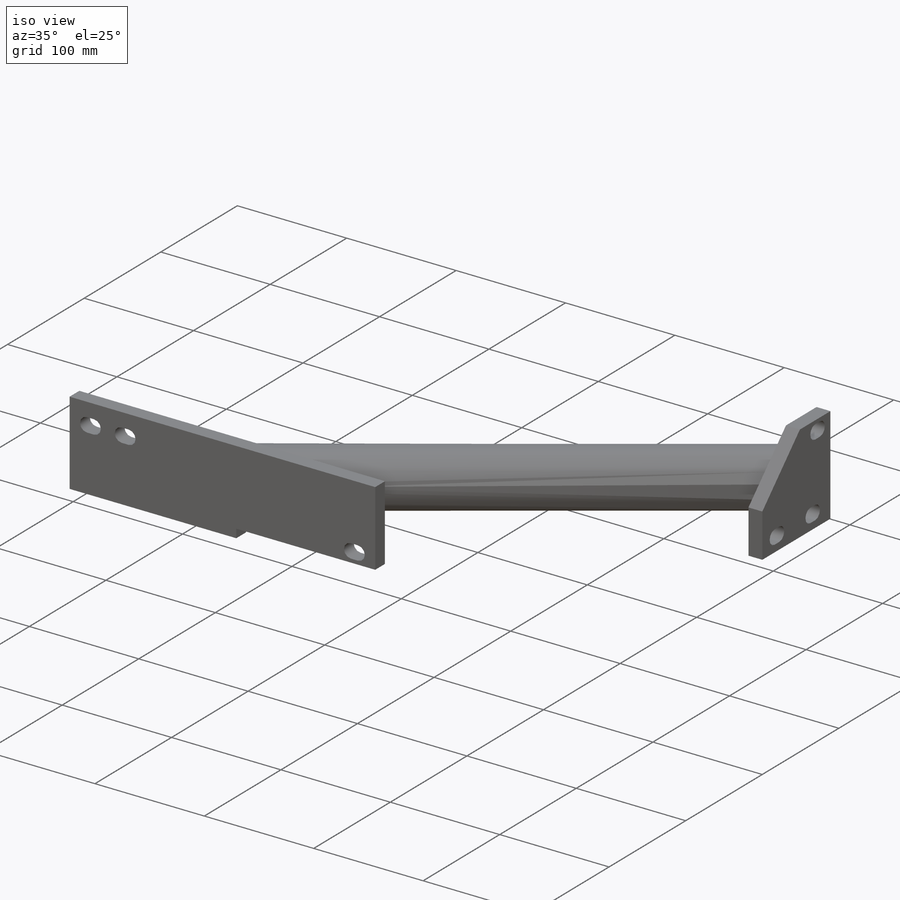
[diagram: iso view]
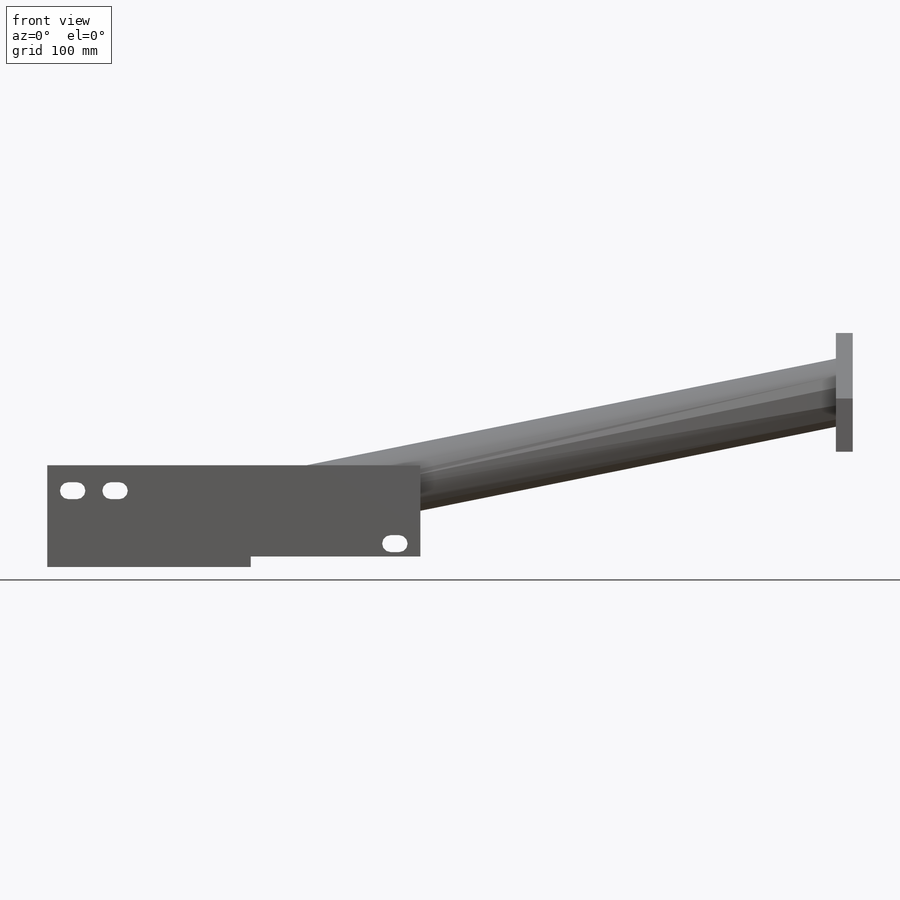
[diagram: front view]
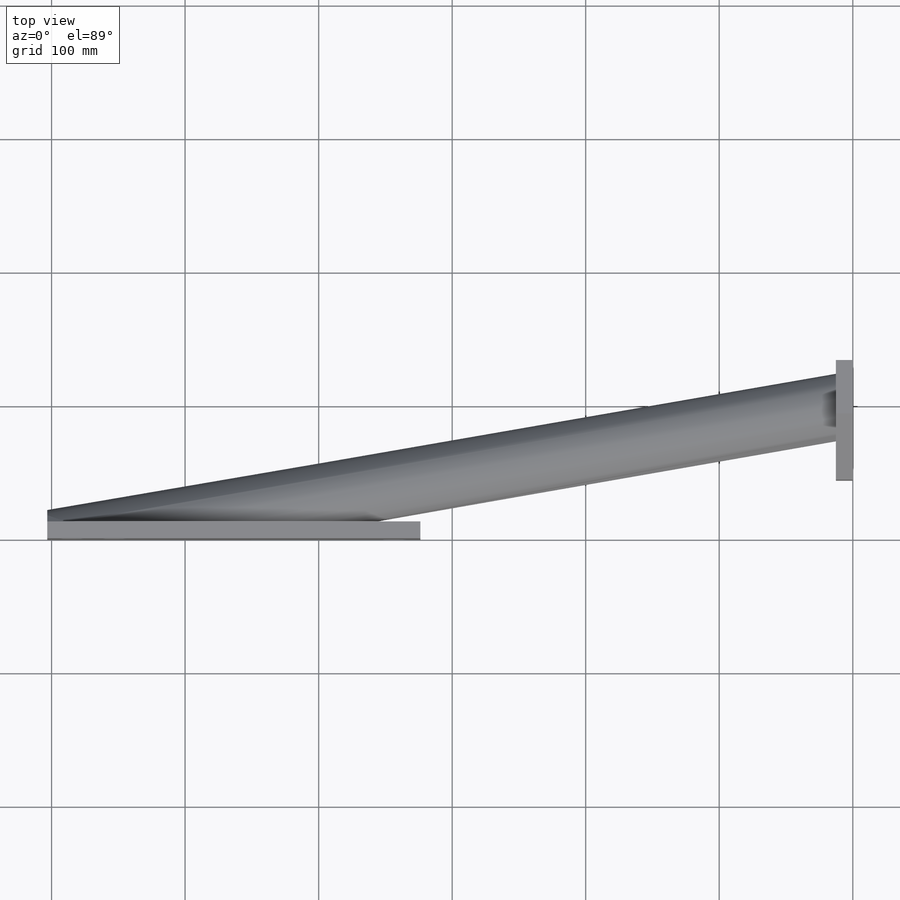
[diagram: top view]
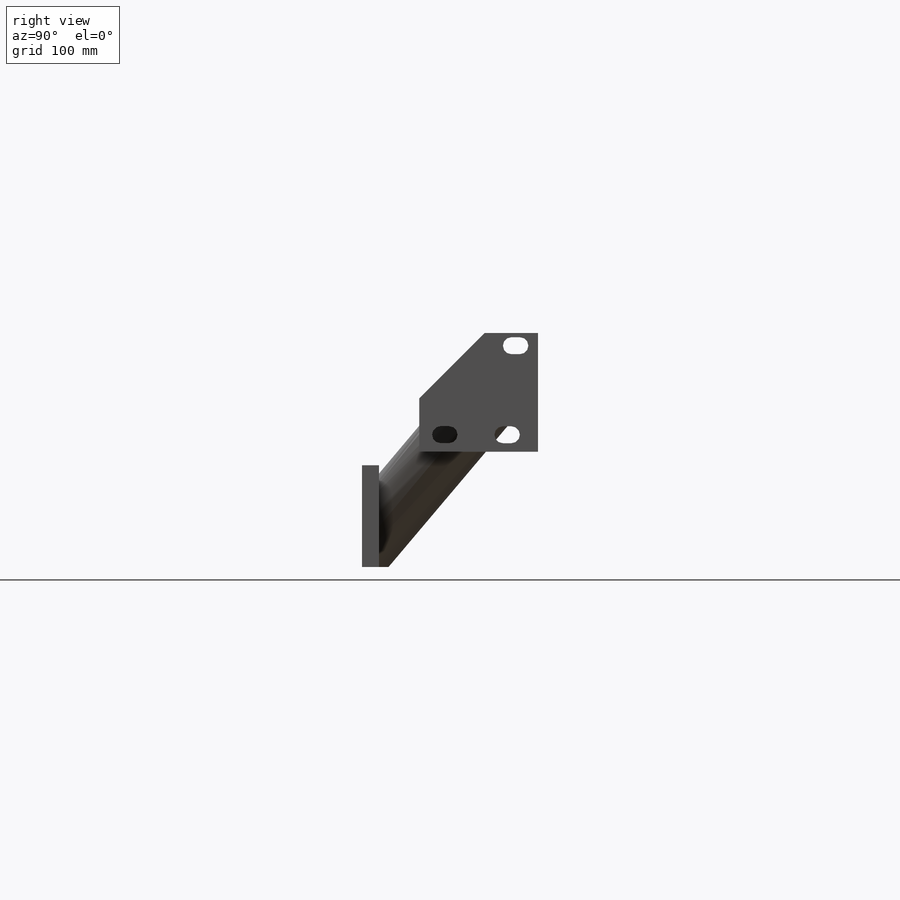
[diagram: right view]
SOLIDWORKS PART (.sldprt)
format: sldprt  version: not decoded by parser v0  size: 331,264 bytes
history: native  units: mm
features: sketch x12, plane x5, extrude x3, cut_extrude x3, hole x2, material x1 (+14 scaffold rows collapsed)
feature tree (40):
  scaffold x14  (default folders/planes/origin — collapsed)
  material  "ASTM A519 Steel"
  sketch  "Sketch2"  dims[c1.D1=12.7mm c1.D2=12.7mm c2.D1=~10.31875mm c2.D2=6.35mm c2.D3=6.35mm c2.D4=6.35mm c3.D3=38.1mm c3.D1=206.375mm c4.D1=90.0deg c5.D1=76.2mm c5.D3=19.05mm c5.D4=39.624mm c6.D1=3.175mm c6.D2=3.175mm]
  extrude  "Base-Extrude"  Depth=12.7mm
  plane  "Plane1"  Offset=603.25mm
  sketch  "Sketch4"  dims[c1.D1=~10.31875mm c1.D2=10.3124mm c1.D8=10.3124mm c1.D7=10.3124mm c1.D14=50.8mm c1.D3=12.7mm c2.D7=12.7mm c2.D10=12.7mm c2.D12=31.75mm c2.D15=31.75mm c2.D4=12.7mm c3.D4=~225.006657deg c4.D4=77.7875mm c5.D4=~45.006657deg c5.D1=65.8622mm c6.D4=63.5mm c6.D5=~31.758875mm c6.D6=~29.70365mm c6.D7=12.7mm c6.D8=25.2476mm c6.D9=105.41mm c6.D10=88.9mm c7.D6=25.2476mm c7.D7=~8.58478mm c7.D9=12.7mm c7.D10=63.5mm c7.D11=65.8622mm c7.D12=31.75mm c7.D13=29.6926mm c7.D3=31.75mm c8.D12=29.6926mm c8.D1=131.826mm c8.D2=176.784mm c8.D3=88.9mm c8.D6=~81.633103mm c9.D6=45.0deg c10.D6=16.764mm c10.D8=63.5mm c10.D9=12.7mm c10.D11=46.736mm c10.D13=32.766mm c10.D14=42.164mm c10.D1=0.0mm c10.D2=0.0mm c10.D3=0.0mm c11.D1=314.452mm c11.D2=176.784mm c11.D4=88.9mm c11.D5=88.9mm c11.D3=39.878mm]
  plane  "Plane2"  Offset=176.784mm
  sketch  "3DSketch10"
  sketch  "Sketch22"
  plane  "Plane6"
  sketch  "Sketch23"  dims[D1=25.4mm D2=25.4mm]
  sketch  "3DSketch11"
  plane  "Plane7"  Offset=25.4mm
  sketch  "Sketch24"
  plane  "Plane8"
  sketch  "Sketch25"  dims[D1=50.8mm D2=12.7mm]
  extrude  "Boss-Extrude2"  [1 undecoded]
  sketch  "Sketch16"  dims[D1=50.8mm]
  cut_extrude  "Cut-Extrude1"  Depth=203.2mm
  sketch  "Sketch26"  dims[D1=101.6mm D2=50.8mm]
  cut_extrude  "Cut-Extrude2"  Depth=152.4mm
  sketch  "Sketch27"  dims[c1.D1=46.736mm c1.D2=63.5mm c1.D3=90.0deg c1.D4=46.736mm c1.D5=63.5mm c2.D1=9.525mm c2.D2=66.675mm c2.D3=66.675mm c3.D1=19.939mm c3.D2=46.736mm c4.D1=3.175mm c4.D2=3.175mm]
  extrude  "Boss-Extrude3"  Depth=12.7mm
  hole  "DeleteHole2"  [1 undecoded]
  hole  "DeleteHole3"  [1 undecoded]
  sketch  "Sketch28"  dims[D1=7.874mm D2=127.0mm]
  cut_extrude  "Cut-Extrude3"  [1 undecoded]
decode coverage: 12 of 20 modeling features carry decoded parameters
note: ~ marks probable driven/reference dimensions
note: 4 parameter values undecoded
summary: no parameter record found for 4 features
note: suppression state not decoded; provenance and decode notes live in map.json
